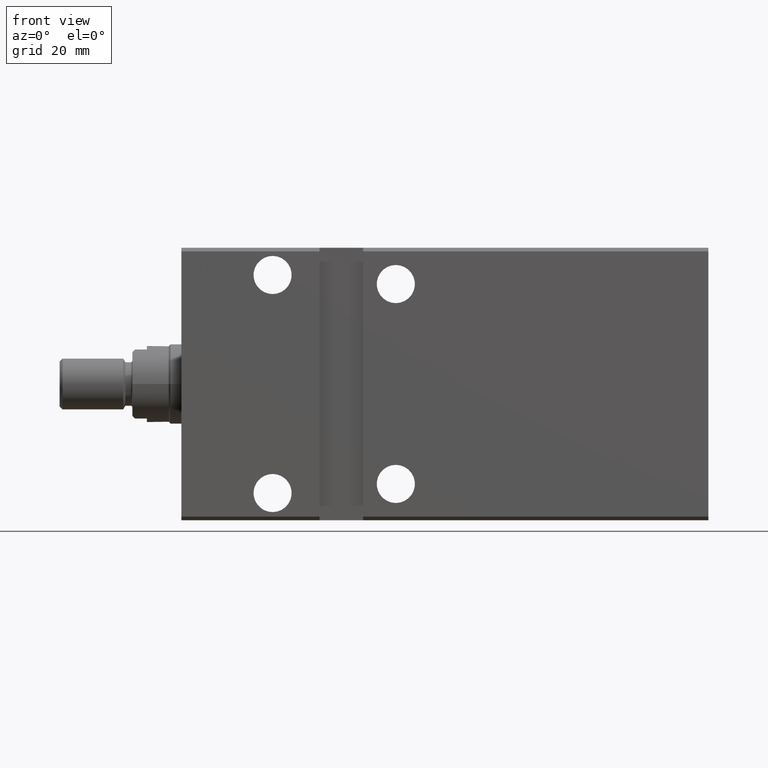
[diagram: clean part render]
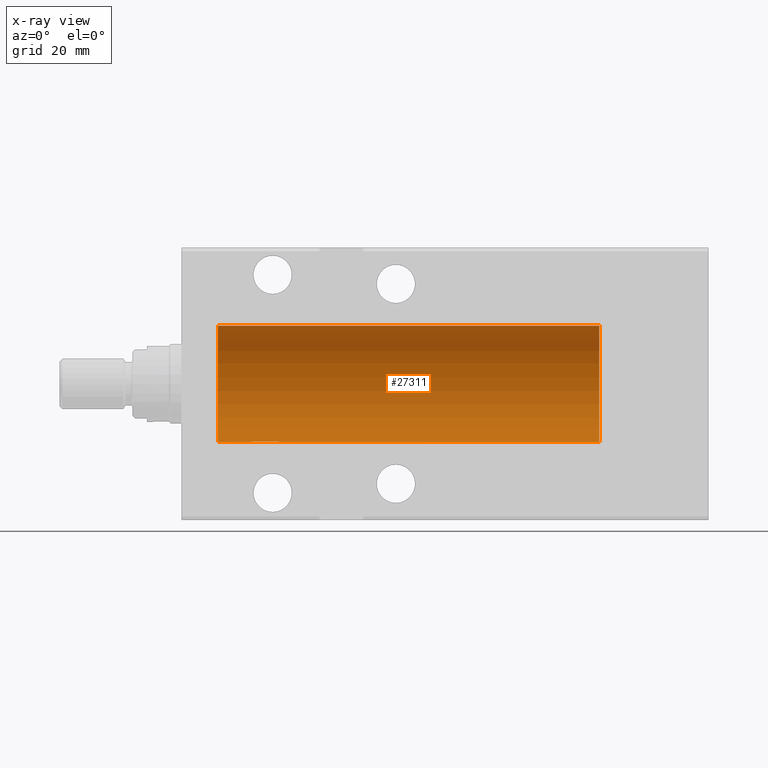
[diagram: x-ray — body ghosted, one internal face saturated and labeled with its STEP entity id]
A machine part, front view, then the same camera in x-ray: the body is ghosted and one INTERNAL B-rep face — a face not visible from any outside direction — is saturated and labeled: STEP entity #27311.
In plain terms, the highlighted cylindrical surface (partial cylindrical patch) has radius 16 mm, axis along (-1, -0, -0).
Its self-contained STEP definition (entity closure, byte-faithful):
#145 = CARTESIAN_POINT ( 'NONE',  ( 26.71770615202116161, 1.508314300261687002, -15.93119902641381991 ) ) ;
#186 = VERTEX_POINT ( 'NONE', #18072 ) ;
#653 = B_SPLINE_CURVE_WITH_KNOTS ( 'NONE', 3,
 ( #6612, #145, #31045, #30855, #34276, #24790 ),
 .UNSPECIFIED., .F., .F.,
 ( 4, 2, 4 ),
 ( 0.000000000000000000, 0.0009228726212815549935, 0.001845745242563109553 ),
 .UNSPECIFIED. ) ;
#929 = CARTESIAN_POINT ( 'NONE',  ( 19.00000000000000000, 0.3073137169939992308, -16.00000000000000355 ) ) ;
#1384 = CARTESIAN_POINT ( 'NONE',  ( 114.9999999999999858, 1.959434878635765131E-15, -16.00000000000000000 ) ) ;
#1945 = LINE ( 'NONE', #14253, #34578 ) ;
#2270 = DIRECTION ( 'NONE',  ( -1.000000000000000000, 0.000000000000000000, 0.000000000000000000 ) ) ;
#2279 = EDGE_CURVE ( 'NONE', #7445, #23744, #1945, .T. ) ;
#3605 = VERTEX_POINT ( 'NONE', #26856 ) ;
#4029 = CARTESIAN_POINT ( 'NONE',  ( 10.00000000000000000, 1.959434878635765131E-15, -16.00000000000000000 ) ) ;
#4440 = CARTESIAN_POINT ( 'NONE',  ( 26.57910603363460922, 1.786057109949259036, -15.89999999999998970 ) ) ;
#4830 = LINE ( 'NONE', #1384, #20372 ) ;
#5839 = DIRECTION ( 'NONE',  ( -1.000000000000000000, -0.000000000000000000, -0.000000000000000000 ) ) ;
#6465 = EDGE_CURVE ( 'NONE', #3605, #28203, #26023, .T. ) ;
#6612 = CARTESIAN_POINT ( 'NONE',  ( 26.57910603363460922, 1.786057109949259036, -15.89999999999998970 ) ) ;
#7021 = ORIENTED_EDGE ( 'NONE', *, *, #30416, .F. ) ;
#7445 = VERTEX_POINT ( 'NONE', #4440 ) ;
#8468 = CARTESIAN_POINT ( 'NONE',  ( 114.9999999999999858, 0.000000000000000000, 16.00000000000000000 ) ) ;
#9475 = ORIENTED_EDGE ( 'NONE', *, *, #6465, .F. ) ;
#10223 = CARTESIAN_POINT ( 'NONE',  ( 19.03558494715525029, 0.6159808737045033844, -15.99099227927342959 ) ) ;
#11683 = DIRECTION ( 'NONE',  ( -1.000000000000000000, -0.000000000000000000, -0.000000000000000000 ) ) ;
#11694 = VERTEX_POINT ( 'NONE', #4029 ) ;
#11951 = CIRCLE ( 'NONE', #34542, 16.00000000000000000 ) ;
#12289 = DIRECTION ( 'NONE',  ( 0.000000000000000000, 0.000000000000000000, 1.000000000000000000 ) ) ;
#12909 = CARTESIAN_POINT ( 'NONE',  ( 19.42089396636538723, 1.786057109949259036, -15.89999999999998970 ) ) ;
#13042 = CARTESIAN_POINT ( 'NONE',  ( 19.28245879915401417, 1.508644848340497058, -15.93116189573794550 ) ) ;
#13248 = CARTESIAN_POINT ( 'NONE',  ( 19.42089396636538723, 1.786057109949259036, -15.89999999999998970 ) ) ;
#13639 = VERTEX_POINT ( 'NONE', #37800 ) ;
#13682 = DIRECTION ( 'NONE',  ( -1.000000000000000000, -0.000000000000000000, -0.000000000000000000 ) ) ;
#13947 = B_SPLINE_CURVE_WITH_KNOTS ( 'NONE', 3,
 ( #31833, #929, #10223, #37701, #13042, #13248 ),
 .UNSPECIFIED., .F., .F.,
 ( 4, 2, 4 ),
 ( 0.001845745242563113023, 0.002767447188281244030, 0.003689149133999374171 ),
 .UNSPECIFIED. ) ;
#14253 = CARTESIAN_POINT ( 'NONE',  ( 114.9999999999999858, 1.786057109949259036, -15.89999999999998970 ) ) ;
#16358 = CARTESIAN_POINT ( 'NONE',  ( 19.00000000000000000, 1.959437589885413797E-15, -16.00000000000000000 ) ) ;
#16437 = AXIS2_PLACEMENT_3D ( 'NONE', #27251, #5839, #12289 ) ;
#16518 = DIRECTION ( 'NONE',  ( -1.000000000000000000, -0.000000000000000000, -0.000000000000000000 ) ) ;
#18072 = CARTESIAN_POINT ( 'NONE',  ( 114.9999999999999858, 0.000000000000000000, 16.00000000000000000 ) ) ;
#20372 = VECTOR ( 'NONE', #16518, 1000.000000000000000 ) ;
#21679 = ORIENTED_EDGE ( 'NONE', *, *, #26072, .T. ) ;
#21780 = VERTEX_POINT ( 'NONE', #16358 ) ;
#21920 = VECTOR ( 'NONE', #13682, 1000.000000000000000 ) ;
#22232 = EDGE_CURVE ( 'NONE', #7445, #28203, #653, .T. ) ;
#22357 = ORIENTED_EDGE ( 'NONE', *, *, #22232, .T. ) ;
#22469 = AXIS2_PLACEMENT_3D ( 'NONE', #25781, #22942, #29212 ) ;
#22942 = DIRECTION ( 'NONE',  ( -1.000000000000000000, 0.000000000000000000, 0.000000000000000000 ) ) ;
#23475 = ORIENTED_EDGE ( 'NONE', *, *, #34947, .T. ) ;
#23744 = VERTEX_POINT ( 'NONE', #12909 ) ;
#23918 = EDGE_CURVE ( 'NONE', #186, #13639, #30069, .T. ) ;
#24790 = CARTESIAN_POINT ( 'NONE',  ( 27.00000000000000000, 1.959432167375458166E-15, -16.00000000000000000 ) ) ;
#25781 = CARTESIAN_POINT ( 'NONE',  ( 114.9999999999999858, 0.000000000000000000, 0.000000000000000000 ) ) ;
#25967 = CARTESIAN_POINT ( 'NONE',  ( 27.00000000000000000, 1.959432167375458166E-15, -16.00000000000000000 ) ) ;
#26023 = LINE ( 'NONE', #38556, #21920 ) ;
#26072 = EDGE_CURVE ( 'NONE', #13639, #11694, #11951, .T. ) ;
#26518 = CARTESIAN_POINT ( 'NONE',  ( 10.00000000000000000, 0.000000000000000000, 0.000000000000000000 ) ) ;
#26856 = CARTESIAN_POINT ( 'NONE',  ( 114.9999999999999858, 1.959434878635765131E-15, -16.00000000000000000 ) ) ;
#27251 = CARTESIAN_POINT ( 'NONE',  ( 114.9999999999999858, 0.000000000000000000, 0.000000000000000000 ) ) ;
#27311 = ADVANCED_FACE ( 'NONE', ( #36542 ), #27455, .F. ) ;
#27455 = CYLINDRICAL_SURFACE ( 'NONE', #16437, 16.00000000000000000 ) ;
#28203 = VERTEX_POINT ( 'NONE', #25967 ) ;
#29212 = DIRECTION ( 'NONE',  ( 0.000000000000000000, 0.000000000000000000, 1.000000000000000000 ) ) ;
#30069 = LINE ( 'NONE', #8468, #37738 ) ;
#30416 = EDGE_CURVE ( 'NONE', #21780, #11694, #4830, .T. ) ;
#30498 = ORIENTED_EDGE ( 'NONE', *, *, #2279, .F. ) ;
#30855 = CARTESIAN_POINT ( 'NONE',  ( 26.96356619788477360, 0.6204082509210441243, -15.99078302721733102 ) ) ;
#31045 = CARTESIAN_POINT ( 'NONE',  ( 26.82196254941095148, 1.219576022118253888, -15.95627408098855504 ) ) ;
#31833 = CARTESIAN_POINT ( 'NONE',  ( 19.00000000000000000, 1.959437589885413797E-15, -16.00000000000000000 ) ) ;
#33463 = CIRCLE ( 'NONE', #22469, 16.00000000000000000 ) ;
#34276 = CARTESIAN_POINT ( 'NONE',  ( 26.99999999999999645, 0.3077040434552391068, -16.00000000000000355 ) ) ;
#34542 = AXIS2_PLACEMENT_3D ( 'NONE', #26518, #2270, #38854 ) ;
#34578 = VECTOR ( 'NONE', #38916, 1000.000000000000000 ) ;
#34947 = EDGE_CURVE ( 'NONE', #21780, #23744, #13947, .T. ) ;
#36542 = FACE_OUTER_BOUND ( 'NONE', #38311, .T. ) ;
#37262 = ORIENTED_EDGE ( 'NONE', *, *, #23918, .T. ) ;
#37701 = CARTESIAN_POINT ( 'NONE',  ( 19.17775111251208386, 1.219193417833760451, -15.95634149554536485 ) ) ;
#37738 = VECTOR ( 'NONE', #11683, 1000.000000000000000 ) ;
#37800 = CARTESIAN_POINT ( 'NONE',  ( 10.00000000000000000, 0.000000000000000000, 16.00000000000000000 ) ) ;
#37875 = EDGE_CURVE ( 'NONE', #186, #3605, #33463, .T. ) ;
#38058 = ORIENTED_EDGE ( 'NONE', *, *, #37875, .F. ) ;
#38311 = EDGE_LOOP ( 'NONE', ( #9475, #38058, #37262, #21679, #7021, #23475, #30498, #22357 ) ) ;
#38556 = CARTESIAN_POINT ( 'NONE',  ( 114.9999999999999858, 1.959434878635765131E-15, -16.00000000000000000 ) ) ;
#38854 = DIRECTION ( 'NONE',  ( 0.000000000000000000, 0.000000000000000000, 1.000000000000000000 ) ) ;
#38916 = DIRECTION ( 'NONE',  ( -1.000000000000000000, -0.000000000000000000, -0.000000000000000000 ) ) ;